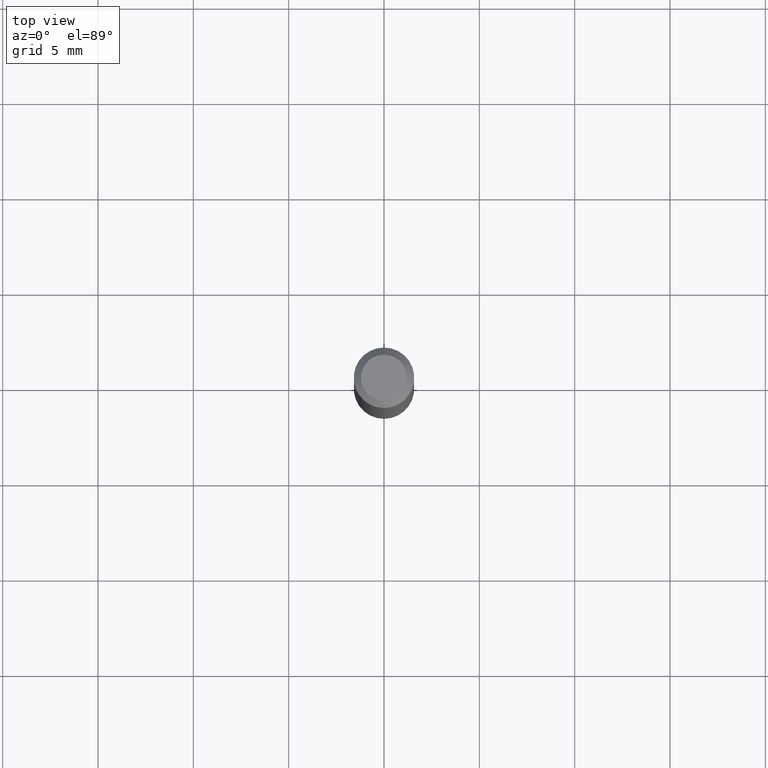
[diagram: clean part render]
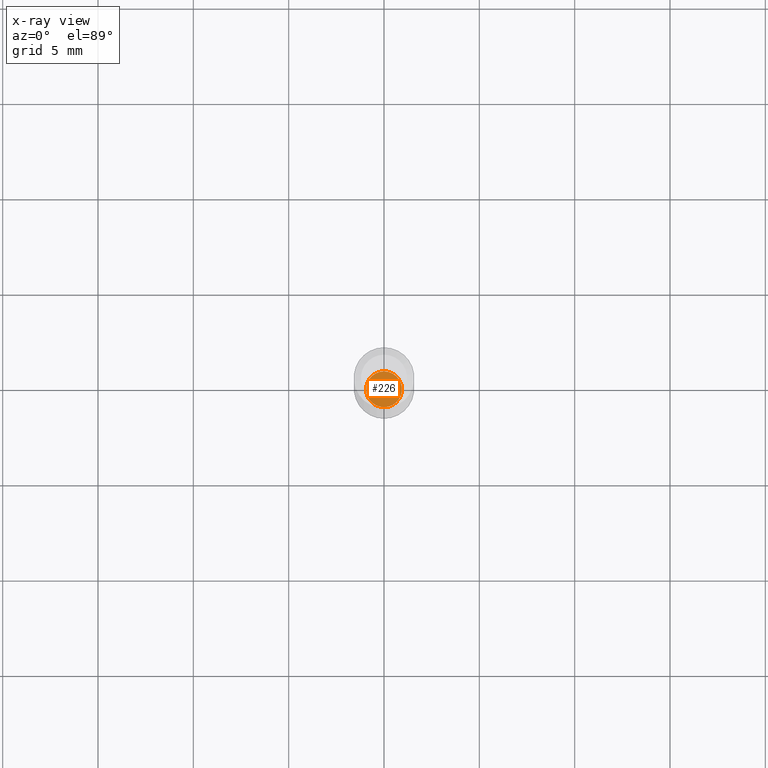
[diagram: x-ray — body ghosted, one internal face saturated and labeled with its STEP entity id]
A machine part, top view, then the same camera in x-ray: the body is ghosted and one INTERNAL B-rep face — a face not visible from any outside direction — is saturated and labeled: STEP entity #226.
In plain terms, the highlighted planar face has unit normal (-0, 0, 1).
Its self-contained STEP definition (entity closure, byte-faithful):
#69 = AXIS2_PLACEMENT_3D ( 'NONE', #167, #290, #303 ) ;
#88 = EDGE_LOOP ( 'NONE', ( #96, #499 ) ) ;
#96 = ORIENTED_EDGE ( 'NONE', *, *, #149, .F. ) ;
#110 = CARTESIAN_POINT ( 'NONE',  ( 3.393134168039948742E-29, -4.844364197391397644E-15, -1.387500000000000178 ) ) ;
#139 = VERTEX_POINT ( 'NONE', #342 ) ;
#149 = EDGE_CURVE ( 'NONE', #139, #479, #330, .T. ) ;
#167 = CARTESIAN_POINT ( 'NONE',  ( 3.393134168039948742E-29, -4.844364197391397644E-15, -1.387500000000000178 ) ) ;
#172 = EDGE_CURVE ( 'NONE', #479, #139, #465, .T. ) ;
#184 = CARTESIAN_POINT ( 'NONE',  ( 3.393134168039948742E-29, -4.844364197391397644E-15, -1.387500000000000178 ) ) ;
#226 = ADVANCED_FACE ( 'NONE', ( #307 ), #505, .F. ) ;
#236 = AXIS2_PLACEMENT_3D ( 'NONE', #110, #509, #259 ) ;
#259 = DIRECTION ( 'NONE',  ( -6.982962677686265922E-15, -1.000000000000000000, 3.491433655777583497E-15 ) ) ;
#290 = DIRECTION ( 'NONE',  ( -2.445502103091854659E-29, 3.491433655777583102E-15, 1.000000000000000000 ) ) ;
#298 = DIRECTION ( 'NONE',  ( -2.445502103091854659E-29, 3.491433655777583102E-15, 1.000000000000000000 ) ) ;
#303 = DIRECTION ( 'NONE',  ( -6.982962677686265133E-15, -1.000000000000000000, 0.000000000000000000 ) ) ;
#307 = FACE_OUTER_BOUND ( 'NONE', #88, .T. ) ;
#309 = DIRECTION ( 'NONE',  ( -6.982962677686265133E-15, -1.000000000000000000, 0.000000000000000000 ) ) ;
#330 = CIRCLE ( 'NONE', #69, 0.03699999999999999123 ) ;
#342 = CARTESIAN_POINT ( 'NONE',  ( -2.583696190743578270E-16, -0.03700000000000483458, -1.387500000000000178 ) ) ;
#371 = AXIS2_PLACEMENT_3D ( 'NONE', #184, #298, #309 ) ;
#419 = CARTESIAN_POINT ( 'NONE',  ( 2.646771690706708837E-16, 0.03699999999999514788, -1.387500000000000178 ) ) ;
#465 = CIRCLE ( 'NONE', #371, 0.03699999999999999123 ) ;
#479 = VERTEX_POINT ( 'NONE', #419 ) ;
#499 = ORIENTED_EDGE ( 'NONE', *, *, #172, .F. ) ;
#505 = PLANE ( 'NONE',  #236 ) ;
#509 = DIRECTION ( 'NONE',  ( -2.445502103091854099E-29, 3.491433655777583497E-15, 1.000000000000000000 ) ) ;